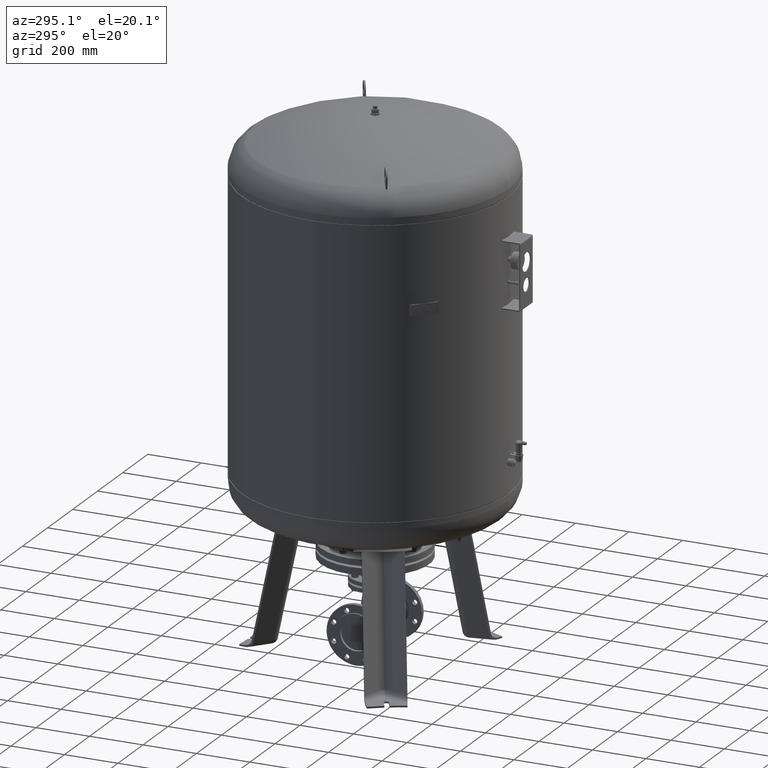
[diagram: clean part render]
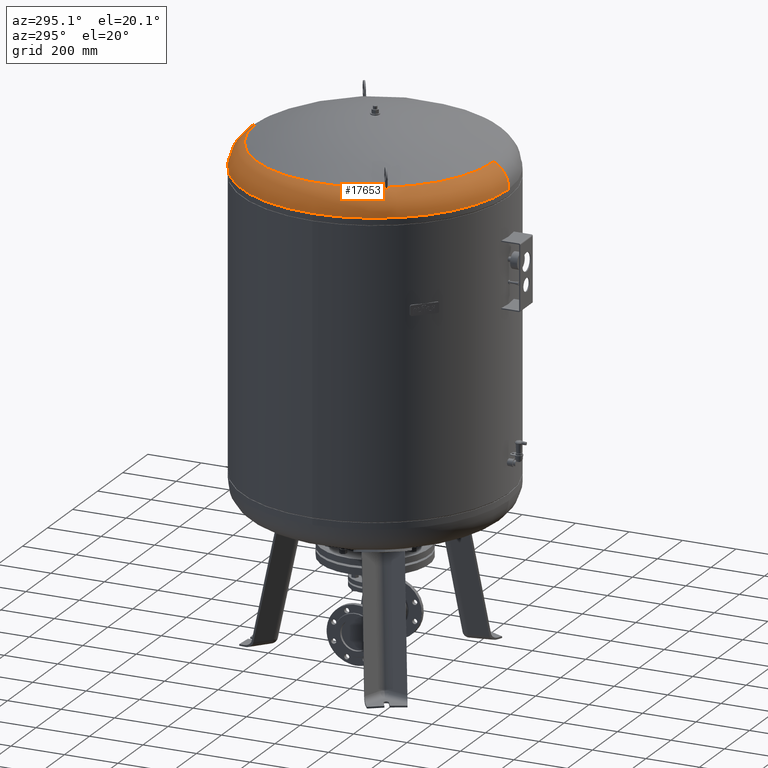
[diagram: same view with one face highlighted and labeled with its STEP entity id]
A machine part, auxiliary view. The second image highlights one B-rep face of the part: STEP entity #17653.
In plain terms, the highlighted toroidal blend (fillet) surface has major radius 399.4 mm and minor (blend) radius 100.6 mm.
Its self-contained STEP definition (entity closure, byte-faithful):
#17194=CARTESIAN_POINT('',(-500.0,2.569315E-014,1775.544644927280400));
#17195=VERTEX_POINT('',#17194);
#17202=CARTESIAN_POINT('',(3.753887E-014,499.999999999999940,1775.544644927280400));
#17203=VERTEX_POINT('',#17202);
#17204=CARTESIAN_POINT('',(2.260647E-015,-3.553717E-014,1775.544644927280400));
#17205=DIRECTION('',(0.0,0.0,-1.0));
#17206=DIRECTION('',(1.0,0.0,0.0));
#17207=AXIS2_PLACEMENT_3D('',#17204,#17205,#17206);
#17208=CIRCLE('',#17207,500.0);
#17209=EDGE_CURVE('',#17195,#17203,#17208,.T.);
#17289=CARTESIAN_POINT('',(-2.369145E-014,-500.000000000000060,1775.544644927280400));
#17290=VERTEX_POINT('',#17289);
#17291=CARTESIAN_POINT('',(-2.474646E-014,-443.777777777777600,1865.827383252533800));
#17292=VERTEX_POINT('',#17291);
#17293=CARTESIAN_POINT('',(-2.369145E-014,-399.399999999999980,1775.544644927280400));
#17294=DIRECTION('',(-1.0,0.0,0.0));
#17295=DIRECTION('',(0.0,-1.0,0.0));
#17296=AXIS2_PLACEMENT_3D('',#17293,#17294,#17295);
#17297=CIRCLE('',#17296,100.600000000000010);
#17298=EDGE_CURVE('',#17290,#17292,#17297,.T.);
#17308=CARTESIAN_POINT('',(2.959885E-014,443.777777777777600,1865.827383252533800));
#17309=VERTEX_POINT('',#17308);
#17310=CARTESIAN_POINT('',(2.521933E-014,399.399999999999860,1775.544644927280400));
#17311=DIRECTION('',(1.0,0.0,0.0));
#17312=DIRECTION('',(0.0,1.0,0.0));
#17313=AXIS2_PLACEMENT_3D('',#17310,#17311,#17312);
#17314=CIRCLE('',#17313,100.600000000000010);
#17315=EDGE_CURVE('',#17203,#17309,#17314,.T.);
#17421=CARTESIAN_POINT('',(-382.814047410493060,-224.481894937162560,1865.827383252533800));
#17422=VERTEX_POINT('',#17421);
#17423=CARTESIAN_POINT('',(-389.830975236114630,-228.533120106169180,1861.371241859355700));
#17424=VERTEX_POINT('',#17423);
#17425=CARTESIAN_POINT('',(-382.814047410493060,-224.481894937162560,1865.827383252533800));
#17426=CARTESIAN_POINT('',(-383.639352309694170,-224.958384942879830,1865.358964044102800));
#17427=CARTESIAN_POINT('',(-384.465875380145410,-225.435578260096290,1864.871089830497800));
#17428=CARTESIAN_POINT('',(-386.558700313612230,-226.643871298800120,1863.585884909508400));
#17429=CARTESIAN_POINT('',(-387.823023543382530,-227.373828655850640,1862.762865036489300));
#17430=CARTESIAN_POINT('',(-389.327412684914410,-228.242388131680000,1861.724754307438600));
#17431=CARTESIAN_POINT('',(-389.579482540164630,-228.387920730463240,1861.548806910300500));
#17432=CARTESIAN_POINT('',(-389.830975236114630,-228.533120106169180,1861.371241859355700));
#17433=B_SPLINE_CURVE_WITH_KNOTS('',3,(#17425,#17426,#17427,#17428,#17429,#17430,#17431,#17432),.UNSPECIFIED.,.F.,.U.,(4,2,2,4),(490.490460209288130,493.520523970825020,498.176350640228350,499.115750118992540),.UNSPECIFIED.);
#17434=EDGE_CURVE('',#17422,#17424,#17433,.T.);
#17536=CARTESIAN_POINT('',(-392.830975236114630,-223.336967683462570,1861.371241859355700));
#17537=VERTEX_POINT('',#17536);
#17538=CARTESIAN_POINT('',(-389.830975236114630,-228.533120106169180,1861.371241859355700));
#17539=CARTESIAN_POINT('',(-390.333307968772260,-227.664983484217170,1861.374723691362500));
#17540=CARTESIAN_POINT('',(-390.833741791658670,-226.799162381117950,1861.376448557724200));
#17541=CARTESIAN_POINT('',(-391.332224433285660,-225.935765119128830,1861.376448557724200));
#17542=CARTESIAN_POINT('',(-391.830707074909750,-225.072367857144680,1861.376448557724200));
#17543=CARTESIAN_POINT('',(-392.330313233880300,-224.206068902067500,1861.374723691362300));
#17544=CARTESIAN_POINT('',(-392.830975236114630,-223.336967683462570,1861.371241859355700));
#17545=B_SPLINE_CURVE_WITH_KNOTS('',3,(#17538,#17539,#17540,#17541,#17542,#17543,#17544),.UNSPECIFIED.,.F.,.U.,(4,3,4),(-2.990895849762056,0.0,2.990895849744776),.UNSPECIFIED.);
#17546=EDGE_CURVE('',#17424,#17537,#17545,.T.);
#17571=CARTESIAN_POINT('',(-385.814047410493120,-219.285742514455960,1865.827383252533800));
#17572=VERTEX_POINT('',#17571);
#17573=CARTESIAN_POINT('',(-392.830975236114630,-223.336967683462570,1861.371241859355700));
#17574=CARTESIAN_POINT('',(-392.579482540164690,-223.191768307756660,1861.548806910300300));
#17575=CARTESIAN_POINT('',(-392.327412684914520,-223.046235708973430,1861.724754307438600));
#17576=CARTESIAN_POINT('',(-390.823023543382700,-222.177676233144100,1862.762865036489300));
#17577=CARTESIAN_POINT('',(-389.558700313612460,-221.447718876093570,1863.585884909508400));
#17578=CARTESIAN_POINT('',(-387.465875380145580,-220.239425837389750,1864.871089830497800));
#17579=CARTESIAN_POINT('',(-386.639352309694290,-219.762232520173260,1865.358964044102800));
#17580=CARTESIAN_POINT('',(-385.814047410493120,-219.285742514455960,1865.827383252533800));
#17581=B_SPLINE_CURVE_WITH_KNOTS('',3,(#17573,#17574,#17575,#17576,#17577,#17578,#17579,#17580),.UNSPECIFIED.,.F.,.U.,(4,2,2,4),(96.832424772951825,97.771824251715969,102.427650921119290,105.457714682656370),.UNSPECIFIED.);
#17582=EDGE_CURVE('',#17537,#17572,#17581,.T.);
#17619=CARTESIAN_POINT('',(-2.369145E-014,-3.553717E-014,1775.544644927280400));
#17620=DIRECTION('',(1.168563E-017,-1.836970E-016,-1.0));
#17621=DIRECTION('',(0.0,-1.0,0.0));
#17622=AXIS2_PLACEMENT_3D('',#17619,#17620,#17621);
#17623=TOROIDAL_SURFACE('',#17622,399.399999999999920,100.600000000000010);
#17624=ORIENTED_EDGE('',*,*,#17298,.T.);
#17625=CARTESIAN_POINT('',(1.205637E-015,-1.895250E-014,1865.827383252533800));
#17626=DIRECTION('',(0.0,0.0,-1.0));
#17627=DIRECTION('',(1.0,0.0,0.0));
#17628=AXIS2_PLACEMENT_3D('',#17625,#17626,#17627);
#17629=CIRCLE('',#17628,443.777777777777600);
#17630=EDGE_CURVE('',#17292,#17422,#17629,.T.);
#17631=ORIENTED_EDGE('',*,*,#17630,.T.);
#17632=ORIENTED_EDGE('',*,*,#17434,.T.);
#17633=ORIENTED_EDGE('',*,*,#17546,.T.);
#17634=ORIENTED_EDGE('',*,*,#17582,.T.);
#17635=CARTESIAN_POINT('',(1.205637E-015,-1.895250E-014,1865.827383252533800));
#17636=DIRECTION('',(0.0,0.0,-1.0));
#17637=DIRECTION('',(1.0,0.0,0.0));
#17638=AXIS2_PLACEMENT_3D('',#17635,#17636,#17637);
#17639=CIRCLE('',#17638,443.777777777777600);
#17640=EDGE_CURVE('',#17572,#17309,#17639,.T.);
#17641=ORIENTED_EDGE('',*,*,#17640,.T.);
#17642=ORIENTED_EDGE('',*,*,#17315,.F.);
#17643=ORIENTED_EDGE('',*,*,#17209,.F.);
#17644=CARTESIAN_POINT('',(2.260647E-015,-3.553717E-014,1775.544644927280400));
#17645=DIRECTION('',(0.0,0.0,-1.0));
#17646=DIRECTION('',(1.0,0.0,0.0));
#17647=AXIS2_PLACEMENT_3D('',#17644,#17645,#17646);
#17648=CIRCLE('',#17647,500.0);
#17649=EDGE_CURVE('',#17290,#17195,#17648,.T.);
#17650=ORIENTED_EDGE('',*,*,#17649,.F.);
#17651=EDGE_LOOP('',(#17624,#17631,#17632,#17633,#17634,#17641,#17642,#17643,#17650));
#17652=FACE_OUTER_BOUND('',#17651,.T.);
#17653=ADVANCED_FACE('',(#17652),#17623,.T.);